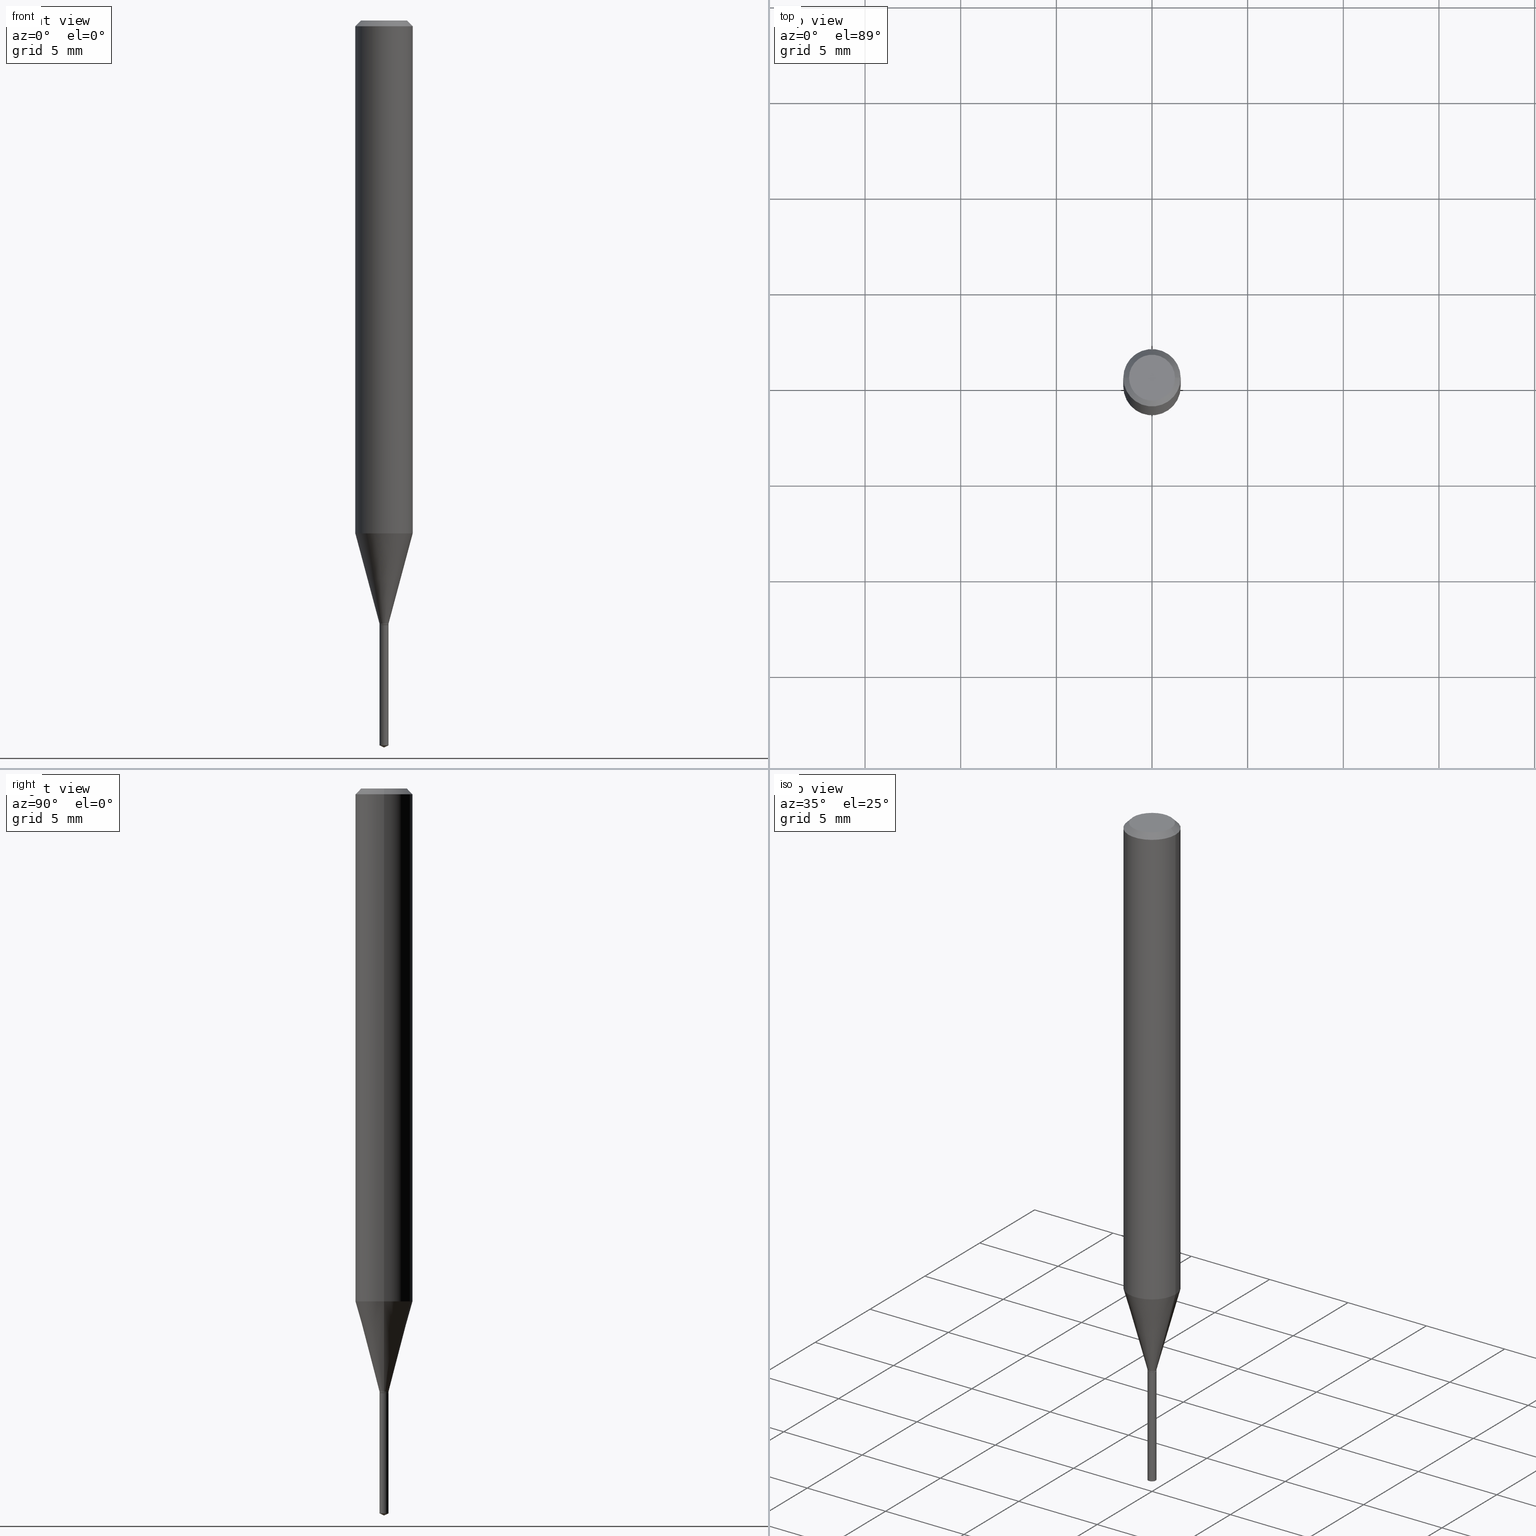
[diagram: canonical four-view strip — front | top / right | iso, engineering-drawing reading convention]
A machine part, canonical four-view strip (front | top / right | iso — engineering-drawing reading convention). The complete STEP part file that produces these views, byte-faithful:
ISO-10303-21;
HEADER;
FILE_DESCRIPTION (( 'STEP AP203' ),
    '1' );
FILE_NAME ('07422.STEP',
    '2024-04-23T21:16:36',
    ( '' ),
    ( '' ),
    'SwSTEP 2.0',
    'SolidWorks 2023',
    '' );
FILE_SCHEMA (( 'CONFIG_CONTROL_DESIGN' ));
ENDSEC;

DATA;
#1 =( LENGTH_UNIT ( ) NAMED_UNIT ( * ) SI_UNIT ( $, .METRE. ) );
#2 = LINE ( 'NONE', #193, #13 ) ;
#3 = EDGE_LOOP ( 'NONE', ( #420, #167, #348, #89 ) ) ;
#4 = CONICAL_SURFACE ( 'NONE', #62, 0.05904999999999999832, 0.7853981633974452814 ) ;
#5 = APPROVAL_ROLE ( '' ) ;
#6 = VECTOR ( 'NONE', #463, 39.37007874015748143 ) ;
#7 = DIRECTION ( 'NONE',  ( -2.438088387897960049E-29, 3.491481338843145188E-15, 1.000000000000000000 ) ) ;
#8 = DATE_TIME_ROLE ( 'creation_date' ) ;
#9 = EDGE_CURVE ( 'NONE', #271, #310, #80, .T. ) ;
#10 = ORIENTED_EDGE ( 'NONE', *, *, #248, .F. ) ;
#11 = EDGE_LOOP ( 'NONE', ( #199, #414, #390, #19 ) ) ;
#12 = DIRECTION ( 'NONE',  ( -2.445468806185136597E-29, 3.491481338843145583E-15, 1.000000000000000000 ) ) ;
#13 = VECTOR ( 'NONE', #376, 39.37007874015748854 ) ;
#14 = DIRECTION ( 'NONE',  ( 1.000000000000000000, -6.982962677686266711E-15, 4.876176775795935232E-29 ) ) ;
#15 = LOCAL_TIME ( 17, 16, 36.00000000000000000, #49 ) ;
#16 = ORIENTED_EDGE ( 'NONE', *, *, #22, .F. ) ;
#17 = EDGE_CURVE ( 'NONE', #428, #419, #194, .T. ) ;
#18 = CARTESIAN_POINT ( 'NONE',  ( 3.670345667395058439E-29, -5.207239042452925869E-15, -1.496099999999999985 ) ) ;
#19 = ORIENTED_EDGE ( 'NONE', *, *, #17, .F. ) ;
#20 = DIRECTION ( 'NONE',  ( 0.7071067811866191821, -2.468850131083007662E-15, 0.7071067811864758523 ) ) ;
#21 = CARTESIAN_POINT ( 'NONE',  ( -0.008749999999999999098, -4.278930217101637721E-15, -1.244099999999999984 ) ) ;
#22 = EDGE_CURVE ( 'NONE', #474, #177, #252, .T. ) ;
#23 = CIRCLE ( 'NONE', #400, 0.008749999999999999098 ) ;
#24 = CONICAL_SURFACE ( 'NONE', #38, 84.42940631927262984, 1.134464013796308235 ) ;
#25 = CARTESIAN_POINT ( 'NONE',  ( 2.888098660104664204E-31, -4.123439461173780263E-17, -0.01181000000000007218 ) ) ;
#26 = ORIENTED_EDGE ( 'NONE', *, *, #394, .F. ) ;
#27 = CARTESIAN_POINT ( 'NONE',  ( 0.009249999999999999542, -6.459240476859796165E-17, 4.510463517611240048E-31 ) ) ;
#28 = ORIENTED_EDGE ( 'NONE', *, *, #108, .T. ) ;
#29 = CARTESIAN_POINT ( 'NONE',  ( -6.459240476856152614E-17, -0.009250000000005217590, -1.491786654162066128 ) ) ;
#30 = AXIS2_PLACEMENT_3D ( 'NONE', #25, #476, #138 ) ;
#31 = APPROVAL_PERSON_ORGANIZATION ( #90, #351, #395 ) ;
#32 = APPROVAL ( #43, 'UNSPECIFIED' ) ;
#33 = DIRECTION ( 'NONE',  ( -6.982962677686268288E-15, -1.000000000000000000, 3.520397390770525262E-15 ) ) ;
#34 = LINE ( 'NONE', #27, #466 ) ;
#35 = CARTESIAN_POINT ( 'NONE',  ( 0.009249999999999999542, -4.406598597753934435E-15, -1.243600000000000039 ) ) ;
#36 = EDGE_CURVE ( 'NONE', #460, #474, #2, .T. ) ;
#37 = AXIS2_PLACEMENT_3D ( 'NONE', #44, #7, #156 ) ;
#38 = AXIS2_PLACEMENT_3D ( 'NONE', #66, #368, #33 ) ;
#39 = DIRECTION ( 'NONE',  ( -6.982962677686266711E-15, -1.000000000000000000, 0.000000000000000000 ) ) ;
#40 = MANIFOLD_SOLID_BREP ( 'Body-Move/Copy2[2]', #163 ) ;
#41 = DIRECTION ( 'NONE',  ( 1.000000000000000000, -6.982962677686254089E-15, 0.000000000000000000 ) ) ;
#42 = EDGE_LOOP ( 'NONE', ( #324, #480, #275, #355 ) ) ;
#43 = APPROVAL_STATUS ( 'not_yet_approved' ) ;
#44 = CARTESIAN_POINT ( 'NONE',  ( 3.042407741774928155E-29, -4.343751933654757151E-15, -1.244099999999999984 ) ) ;
#45 = EDGE_CURVE ( 'NONE', #471, #214, #424, .T. ) ;
#46 = CONICAL_SURFACE ( 'NONE', #405, 0.009249999999999999542, 0.2617993877991499074 ) ;
#47 = DIRECTION ( 'NONE',  ( 1.000000000000000000, -6.982962677686306154E-15, 0.000000000000000000 ) ) ;
#48 = VERTEX_POINT ( 'NONE', #79 ) ;
#49 = COORDINATED_UNIVERSAL_TIME_OFFSET ( 5, 0, .BEHIND. ) ;
#50 = DIRECTION ( 'NONE',  ( 1.000000000000000000, -6.982962677686264344E-15, 0.000000000000000000 ) ) ;
#51 = PERSON_AND_ORGANIZATION_ROLE ( 'classification_officer' ) ;
#52 = DIRECTION ( 'NONE',  ( 2.445468806185136597E-29, -3.491481338843145583E-15, -1.000000000000000000 ) ) ;
#53 = COORDINATED_UNIVERSAL_TIME_OFFSET ( 5, 0, .BEHIND. ) ;
#54 = AXIS2_PLACEMENT_3D ( 'NONE', #396, #140, #134 ) ;
#55 = CARTESIAN_POINT ( 'NONE',  ( 3.035560429117610036E-29, -4.333975785905995943E-15, -1.241299999999999848 ) ) ;
#56 = CC_DESIGN_APPROVAL ( #198, ( #144 ) ) ;
#57 = DIRECTION ( 'NONE',  ( 6.439704144417005898E-15, 0.9063077870366489375, 0.4226182617407017172 ) ) ;
#58 = ADVANCED_BREP_SHAPE_REPRESENTATION ( '07422', ( #200, #40, #114 ), #154 ) ;
#59 = DIRECTION ( 'NONE',  ( -2.445468806185136597E-29, 3.491481338843145583E-15, 1.000000000000000000 ) ) ;
#60 = DIRECTION ( 'NONE',  ( 1.000000000000000000, -6.982962677686250144E-15, 0.000000000000000000 ) ) ;
#61 = EDGE_LOOP ( 'NONE', ( #268, #417, #462, #233 ) ) ;
#62 = AXIS2_PLACEMENT_3D ( 'NONE', #236, #52, #116 ) ;
#63 = DIRECTION ( 'NONE',  ( 1.000000000000000000, -6.982962677686264344E-15, 0.000000000000000000 ) ) ;
#64 = CARTESIAN_POINT ( 'NONE',  ( 3.641431628674223535E-29, -5.248285661191353441E-15, -1.496099999999999985 ) ) ;
#65 = ADVANCED_FACE ( 'NONE', ( #342 ), #4, .T. ) ;
#66 = CARTESIAN_POINT ( 'NONE',  ( -9.216901474160064469E-28, 1.328816018163103804E-13, 37.87397874015748300 ) ) ;
#67 = CIRCLE ( 'NONE', #335, 0.05905000000000013710 ) ;
#68 = DIRECTION ( 'NONE',  ( -6.982962677686265133E-15, -1.000000000000000000, 0.000000000000000000 ) ) ;
#69 = CC_DESIGN_PERSON_AND_ORGANIZATION_ASSIGNMENT ( #117, #266, ( #315 ) ) ;
#70 = LINE ( 'NONE', #481, #259 ) ;
#71 = CARTESIAN_POINT ( 'NONE',  ( -6.459240476856754120E-17, -0.009250000000004345024, -1.244099999999999984 ) ) ;
#72 = VECTOR ( 'NONE', #168, 39.37007874015748143 ) ;
#73 = CARTESIAN_POINT ( 'NONE',  ( -0.05905000000000006771, 4.195754854663396409E-16, -2.904631170795525045E-30 ) ) ;
#74 = CARTESIAN_POINT ( 'NONE',  ( 3.042407741774928155E-29, -4.343751933654757151E-15, -1.244099999999999984 ) ) ;
#75 = CARTESIAN_POINT ( 'NONE',  ( 3.035560429117610036E-29, -4.333975785905995943E-15, -1.241299999999999848 ) ) ;
#76 = FACE_OUTER_BOUND ( 'NONE', #42, .T. ) ;
#77 = ADVANCED_FACE ( 'NONE', ( #354 ), #192, .T. ) ;
#78 = COORDINATED_UNIVERSAL_TIME_OFFSET ( 5, 0, .BEHIND. ) ;
#79 = CARTESIAN_POINT ( 'NONE',  ( 6.572520305784578573E-17, 0.009249999999995655794, -1.244099999999999984 ) ) ;
#80 = CIRCLE ( 'NONE', #339, 0.008749999999999999098 ) ;
#81 = ORIENTED_EDGE ( 'NONE', *, *, #207, .T. ) ;
#82 = VECTOR ( 'NONE', #150, 39.37007874015748854 ) ;
#83 = APPLICATION_CONTEXT ( 'configuration controlled 3d designs of mechanical parts and assemblies' ) ;
#84 = ORIENTED_EDGE ( 'NONE', *, *, #36, .T. ) ;
#85 = APPLICATION_PROTOCOL_DEFINITION ( 'international standard', 'config_control_design', 1994, #247 ) ;
#86 = PRODUCT_RELATED_PRODUCT_CATEGORY ( 'detail', '', ( #412 ) ) ;
#87 = ORIENTED_EDGE ( 'NONE', *, *, #207, .F. ) ;
#88 = DIRECTION ( 'NONE',  ( 1.000000000000000000, -6.982962677686250144E-15, 0.000000000000000000 ) ) ;
#89 = ORIENTED_EDGE ( 'NONE', *, *, #108, .F. ) ;
#90 = PERSON_AND_ORGANIZATION ( #345, #392 ) ;
#91 = AXIS2_PLACEMENT_3D ( 'NONE', #243, #129, #173 ) ;
#92 = CARTESIAN_POINT ( 'NONE',  ( 0.000000000000000000, 0.000000000000000000, 0.000000000000000000 ) ) ;
#93 = CC_DESIGN_SECURITY_CLASSIFICATION ( #329, ( #144 ) ) ;
#94 = APPROVAL_DATE_TIME ( #98, #198 ) ;
#95 = CARTESIAN_POINT ( 'NONE',  ( 8.265746106709734507E-48, -1.180129479067563789E-33, -3.380025165646692144E-19 ) ) ;
#96 = ORIENTED_EDGE ( 'NONE', *, *, #22, .T. ) ;
#97 = ADVANCED_FACE ( 'NONE', ( #76 ), #300, .T. ) ;
#98 = DATE_AND_TIME ( #235, #218 ) ;
#99 = DIRECTION ( 'NONE',  ( -2.445468806185136597E-29, 3.491481338843145583E-15, 1.000000000000000000 ) ) ;
#100 = CARTESIAN_POINT ( 'NONE',  ( 4.132873053354867254E-48, -5.900647395337818946E-34, -1.690012582823346072E-19 ) ) ;
#101 = ORIENTED_EDGE ( 'NONE', *, *, #478, .T. ) ;
#102 = AXIS2_PLACEMENT_3D ( 'NONE', #331, #222, #488 ) ;
#103 = FACE_OUTER_BOUND ( 'NONE', #201, .T. ) ;
#104 = ADVANCED_FACE ( 'NONE', ( #152 ), #379, .F. ) ;
#105 = DESIGN_CONTEXT ( 'detailed design', #83, 'design' ) ;
#106 = DIRECTION ( 'NONE',  ( -2.445468806185136877E-29, 3.491481338843145188E-15, 1.000000000000000000 ) ) ;
#107 = CARTESIAN_POINT ( 'NONE',  ( -9.216901474160064469E-28, 1.328816018163103804E-13, 37.87397874015748300 ) ) ;
#108 = EDGE_CURVE ( 'NONE', #471, #381, #458, .T. ) ;
#109 = CIRCLE ( 'NONE', #456, 0.009249999999999999542 ) ;
#110 = DIRECTION ( 'NONE',  ( -2.433949354103485076E-29, 3.507977849870565923E-15, 1.000000000000000000 ) ) ;
#111 = CYLINDRICAL_SURFACE ( 'NONE', #425, 0.05905000000000006771 ) ;
#112 =( NAMED_UNIT ( * ) PLANE_ANGLE_UNIT ( ) SI_UNIT ( $, .RADIAN. ) );
#113 = CARTESIAN_POINT ( 'NONE',  ( 3.042407741774928155E-29, -4.343751933654757151E-15, -1.244099999999999984 ) ) ;
#114 = AXIS2_PLACEMENT_3D ( 'NONE', #422, #224, #301 ) ;
#115 = EDGE_CURVE ( 'NONE', #383, #399, #479, .T. ) ;
#116 = DIRECTION ( 'NONE',  ( -1.000000000000000000, 6.982962677686266711E-15, 0.000000000000000000 ) ) ;
#117 = PERSON_AND_ORGANIZATION ( #345, #392 ) ;
#118 = CARTESIAN_POINT ( 'NONE',  ( -0.05904999999999999832, 3.711095515056362547E-16, -0.01181000000000007218 ) ) ;
#119 = ORIENTED_EDGE ( 'NONE', *, *, #489, .T. ) ;
#120 = DIMENSIONAL_EXPONENTS ( 1.000000000000000000, 0.000000000000000000, 0.000000000000000000, 0.000000000000000000, 0.000000000000000000, 0.000000000000000000, 0.000000000000000000 ) ;
#121 = APPROVAL_STATUS ( 'not_yet_approved' ) ;
#122 = ORIENTED_EDGE ( 'NONE', *, *, #124, .T. ) ;
#123 = ORIENTED_EDGE ( 'NONE', *, *, #135, .F. ) ;
#124 = EDGE_CURVE ( 'NONE', #419, #428, #281, .T. ) ;
#125 = LINE ( 'NONE', #306, #82 ) ;
#126 = AXIS2_PLACEMENT_3D ( 'NONE', #258, #110, #68 ) ;
#127 = ORIENTED_EDGE ( 'NONE', *, *, #151, .F. ) ;
#128 = ORIENTED_EDGE ( 'NONE', *, *, #421, .T. ) ;
#129 = DIRECTION ( 'NONE',  ( -2.445468806185136597E-29, 3.491481338843145583E-15, 1.000000000000000000 ) ) ;
#130 = ORIENTED_EDGE ( 'NONE', *, *, #115, .T. ) ;
#131 = CARTESIAN_POINT ( 'NONE',  ( -0.05905000000000013710, -3.265487090077642716E-15, -1.055443869783069699 ) ) ;
#132 = CALENDAR_DATE ( 2024, 23, 4 ) ;
#133 = CIRCLE ( 'NONE', #372, 0.04724000000000000421 ) ;
#134 = DIRECTION ( 'NONE',  ( -6.982962677686266711E-15, -1.000000000000000000, 0.000000000000000000 ) ) ;
#135 = EDGE_CURVE ( 'NONE', #177, #474, #67, .T. ) ;
#136 = ORIENTED_EDGE ( 'NONE', *, *, #385, .T. ) ;
#137 = SECURITY_CLASSIFICATION_LEVEL ( 'unclassified' ) ;
#138 = DIRECTION ( 'NONE',  ( -1.000000000000000000, 6.982962677686266711E-15, 0.000000000000000000 ) ) ;
#139 = VERTEX_POINT ( 'NONE', #205 ) ;
#140 = DIRECTION ( 'NONE',  ( -2.433949354103485076E-29, 3.507977849870565923E-15, 1.000000000000000000 ) ) ;
#141 = ORIENTED_EDGE ( 'NONE', *, *, #248, .T. ) ;
#142 = DIRECTION ( 'NONE',  ( 0.7071067811865453523, -7.319954787623248157E-15, -0.7071067811865496822 ) ) ;
#143 = VECTOR ( 'NONE', #277, 39.37007874015748143 ) ;
#144 = PRODUCT_DEFINITION_FORMATION_WITH_SPECIFIED_SOURCE ( 'ANY', '', #412, .NOT_KNOWN. ) ;
#145 = PLANE ( 'NONE',  #411 ) ;
#146 = CARTESIAN_POINT ( 'NONE',  ( 3.645264513692742757E-29, -5.212631230163837176E-15, -1.491786654162066128 ) ) ;
#147 = FACE_OUTER_BOUND ( 'NONE', #195, .T. ) ;
#148 = CIRCLE ( 'NONE', #465, 0.05904999999999999832 ) ;
#149 = DIRECTION ( 'NONE',  ( 1.000000000000000000, -6.982962677686266711E-15, 0.000000000000000000 ) ) ;
#150 = DIRECTION ( 'NONE',  ( -0.2588190451025211836, 5.211531920934547886E-15, 0.9659258262890679791 ) ) ;
#151 = EDGE_CURVE ( 'NONE', #383, #264, #468, .T. ) ;
#152 = FACE_OUTER_BOUND ( 'NONE', #175, .T. ) ;
#153 = VECTOR ( 'NONE', #106, 39.37007874015748143 ) ;
#154 =( GEOMETRIC_REPRESENTATION_CONTEXT ( 3 ) GLOBAL_UNCERTAINTY_ASSIGNED_CONTEXT ( ( #299 ) ) GLOBAL_UNIT_ASSIGNED_CONTEXT ( ( #452, #112, #189 ) ) REPRESENTATION_CONTEXT ( 'NONE', 'WORKASPACE' ) );
#155 = DIRECTION ( 'NONE',  ( -6.982962677686265133E-15, -1.000000000000000000, 0.000000000000000000 ) ) ;
#156 = DIRECTION ( 'NONE',  ( 1.000000000000000000, -6.982962677686265922E-15, 4.876176775795935793E-29 ) ) ;
#157 = ORIENTED_EDGE ( 'NONE', *, *, #9, .F. ) ;
#158 = PERSON_AND_ORGANIZATION ( #345, #392 ) ;
#159 = DIRECTION ( 'NONE',  ( 1.000000000000000000, -6.982962677686250144E-15, 0.000000000000000000 ) ) ;
#160 = EDGE_CURVE ( 'NONE', #399, #344, #358, .T. ) ;
#161 = ORIENTED_EDGE ( 'NONE', *, *, #407, .F. ) ;
#162 = APPLICATION_PROTOCOL_DEFINITION ( 'international standard', 'config_control_design', 1994, #83 ) ;
#163 = CLOSED_SHELL ( 'NONE', ( #366, #276, #186, #333, #77, #439, #269, #307, #65, #292, #104, #212 ) ) ;
#164 = CIRCLE ( 'NONE', #343, 0.009249999999999999542 ) ;
#165 = AXIS2_PLACEMENT_3D ( 'NONE', #146, #450, #155 ) ;
#166 = DIRECTION ( 'NONE',  ( 2.438088387897960049E-29, -3.491481338843145188E-15, -1.000000000000000000 ) ) ;
#167 = ORIENTED_EDGE ( 'NONE', *, *, #413, .T. ) ;
#168 = DIRECTION ( 'NONE',  ( -2.433949354103485076E-29, 3.507977849870566318E-15, 1.000000000000000000 ) ) ;
#169 = ORIENTED_EDGE ( 'NONE', *, *, #459, .T. ) ;
#170 = EDGE_CURVE ( 'NONE', #214, #471, #133, .T. ) ;
#171 = DIRECTION ( 'NONE',  ( -6.982962677686266711E-15, -1.000000000000000000, 0.000000000000000000 ) ) ;
#172 = AXIS2_PLACEMENT_3D ( 'NONE', #270, #423, #50 ) ;
#173 = DIRECTION ( 'NONE',  ( 1.000000000000000000, -6.982962677686306154E-15, 0.000000000000000000 ) ) ;
#174 = VECTOR ( 'NONE', #415, 39.37007874015748143 ) ;
#175 = EDGE_LOOP ( 'NONE', ( #87, #157 ) ) ;
#176 = CYLINDRICAL_SURFACE ( 'NONE', #232, 0.05905000000000006771 ) ;
#177 = VERTEX_POINT ( 'NONE', #131 ) ;
#178 = CC_DESIGN_PERSON_AND_ORGANIZATION_ASSIGNMENT ( #242, #244, ( #144 ) ) ;
#179 = CARTESIAN_POINT ( 'NONE',  ( 2.888098660104664204E-31, -4.123439461173780263E-17, -0.01181000000000007218 ) ) ;
#180 = ORIENTED_EDGE ( 'NONE', *, *, #17, .T. ) ;
#181 = DIRECTION ( 'NONE',  ( -2.445468806185136597E-29, 3.491481338843145583E-15, 1.000000000000000000 ) ) ;
#182 = CIRCLE ( 'NONE', #487, 0.009249999999999999542 ) ;
#183 = FACE_OUTER_BOUND ( 'NONE', #290, .T. ) ;
#184 = PRODUCT_DEFINITION_SHAPE ( 'NONE', 'NONE',  #315 ) ;
#185 = DIRECTION ( 'NONE',  ( 1.000000000000000000, -6.982962677686266711E-15, 4.876176775795935232E-29 ) ) ;
#186 = ADVANCED_FACE ( 'NONE', ( #429 ), #176, .T. ) ;
#187 = DIRECTION ( 'NONE',  ( 6.982962677686265922E-15, 1.000000000000000000, -3.507977849870566318E-15 ) ) ;
#188 = APPROVAL_PERSON_ORGANIZATION ( #227, #32, #5 ) ;
#189 =( NAMED_UNIT ( * ) SI_UNIT ( $, .STERADIAN. ) SOLID_ANGLE_UNIT ( ) );
#190 = CC_DESIGN_PERSON_AND_ORGANIZATION_ASSIGNMENT ( #384, #418, ( #412 ) ) ;
#191 = DIRECTION ( 'NONE',  ( -2.433949354103485076E-29, 3.507977849870565923E-15, 1.000000000000000000 ) ) ;
#192 = CYLINDRICAL_SURFACE ( 'NONE', #303, 0.009249999999999999542 ) ;
#193 = CARTESIAN_POINT ( 'NONE',  ( 0.009249999999999999542, -4.398568190674593941E-15, -1.241299999999999848 ) ) ;
#194 = CIRCLE ( 'NONE', #410, 0.009249999999999999542 ) ;
#195 = EDGE_LOOP ( 'NONE', ( #427, #280, #26 ) ) ;
#196 = CONICAL_SURFACE ( 'NONE', #30, 0.05904999999999999832, 0.7853981633974452814 ) ;
#197 = CALENDAR_DATE ( 2024, 23, 4 ) ;
#198 = APPROVAL ( #121, 'UNSPECIFIED' ) ;
#199 = ORIENTED_EDGE ( 'NONE', *, *, #451, .F. ) ;
#200 = MANIFOLD_SOLID_BREP ( 'Body-Move/Copy2[1]', #472 ) ;
#201 = EDGE_LOOP ( 'NONE', ( #377, #101 ) ) ;
#202 = VECTOR ( 'NONE', #279, 39.37007874015748854 ) ;
#203 = AXIS2_PLACEMENT_3D ( 'NONE', #107, #371, #289 ) ;
#204 = DATE_AND_TIME ( #132, #434 ) ;
#205 = CARTESIAN_POINT ( 'NONE',  ( -0.009249999999999999542, -4.272265786387857456E-15, -1.241299999999999848 ) ) ;
#206 = ORIENTED_EDGE ( 'NONE', *, *, #489, .F. ) ;
#207 = EDGE_CURVE ( 'NONE', #310, #271, #23, .T. ) ;
#208 = DATE_TIME_ROLE ( 'classification_date' ) ;
#209 = LINE ( 'NONE', #359, #356 ) ;
#210 = DIRECTION ( 'NONE',  ( 1.000000000000000000, -6.982962677686254089E-15, 0.000000000000000000 ) ) ;
#211 = CARTESIAN_POINT ( 'NONE',  ( 0.04724000000000000421, -3.852183633974369345E-16, -3.380025165621689721E-19 ) ) ;
#212 = ADVANCED_FACE ( 'NONE', ( #470 ), #442, .T. ) ;
#213 = VECTOR ( 'NONE', #449, 39.37007874015748143 ) ;
#214 = VERTEX_POINT ( 'NONE', #211 ) ;
#215 = CARTESIAN_POINT ( 'NONE',  ( 0.05904999999999999832, -4.535783407291118600E-16, -0.01181000000000007218 ) ) ;
#216 = CARTESIAN_POINT ( 'NONE',  ( 0.000000000000000000, 0.000000000000000000, 0.000000000000000000 ) ) ;
#217 = DIRECTION ( 'NONE',  ( 2.433949354103484515E-29, -3.507977849870566318E-15, -1.000000000000000000 ) ) ;
#218 = LOCAL_TIME ( 17, 16, 36.00000000000000000, #53 ) ;
#219 = EDGE_CURVE ( 'NONE', #344, #48, #164, .T. ) ;
#220 = DIRECTION ( 'NONE',  ( 1.000000000000000000, -6.982962677686266711E-15, 0.000000000000000000 ) ) ;
#221 = CARTESIAN_POINT ( 'NONE',  ( 0.000000000000000000, 0.000000000000000000, 0.000000000000000000 ) ) ;
#222 = DIRECTION ( 'NONE',  ( -2.445468806185136597E-29, 3.491481338843145583E-15, 1.000000000000000000 ) ) ;
#223 = AXIS2_PLACEMENT_3D ( 'NONE', #253, #393, #60 ) ;
#224 = DIRECTION ( 'NONE',  ( 0.000000000000000000, 0.000000000000000000, 1.000000000000000000 ) ) ;
#225 = DIRECTION ( 'NONE',  ( -2.433949354103485076E-29, 3.507977849870565923E-15, 1.000000000000000000 ) ) ;
#226 = EDGE_LOOP ( 'NONE', ( #122, #141, #251, #467 ) ) ;
#227 = PERSON_AND_ORGANIZATION ( #345, #392 ) ;
#228 = DIRECTION ( 'NONE',  ( -6.982962677686266711E-15, -1.000000000000000000, 0.000000000000000000 ) ) ;
#229 = CARTESIAN_POINT ( 'NONE',  ( 0.05905000000000013710, -4.097406521661357129E-15, -1.055443869783069699 ) ) ;
#230 = ORIENTED_EDGE ( 'NONE', *, *, #485, .T. ) ;
#231 = EDGE_LOOP ( 'NONE', ( #96, #230, #161, #283 ) ) ;
#232 = AXIS2_PLACEMENT_3D ( 'NONE', #92, #99, #322 ) ;
#233 = ORIENTED_EDGE ( 'NONE', *, *, #160, .F. ) ;
#234 = ORIENTED_EDGE ( 'NONE', *, *, #170, .T. ) ;
#235 = CALENDAR_DATE ( 2024, 23, 4 ) ;
#236 = CARTESIAN_POINT ( 'NONE',  ( 2.888098660104664204E-31, -4.123439461173780263E-17, -0.01181000000000007218 ) ) ;
#237 = SHAPE_DEFINITION_REPRESENTATION ( #184, #58 ) ;
#238 = DIRECTION ( 'NONE',  ( 1.000000000000000000, -6.982962677686266711E-15, 4.876185090822587894E-29 ) ) ;
#239 = CC_DESIGN_PERSON_AND_ORGANIZATION_ASSIGNMENT ( #387, #51, ( #329 ) ) ;
#240 = AXIS2_PLACEMENT_3D ( 'NONE', #100, #166, #317 ) ;
#241 = LOCAL_TIME ( 17, 16, 36.00000000000000000, #440 ) ;
#242 = PERSON_AND_ORGANIZATION ( #345, #392 ) ;
#243 = CARTESIAN_POINT ( 'NONE',  ( 3.041185007371835914E-29, -4.342006192985336437E-15, -1.243600000000000039 ) ) ;
#244 = PERSON_AND_ORGANIZATION_ROLE ( 'design_supplier' ) ;
#245 = DIRECTION ( 'NONE',  ( -2.445468806185136877E-29, 3.491481338843145188E-15, 1.000000000000000000 ) ) ;
#246 = EDGE_LOOP ( 'NONE', ( #81, #437, #426, #469 ) ) ;
#247 = APPLICATION_CONTEXT ( 'configuration controlled 3d designs of mechanical parts and assemblies' ) ;
#248 = EDGE_CURVE ( 'NONE', #428, #139, #389, .T. ) ;
#249 = COORDINATED_UNIVERSAL_TIME_OFFSET ( 5, 0, .BEHIND. ) ;
#250 = CARTESIAN_POINT ( 'NONE',  ( 2.581055060233824275E-29, -3.685062575543982998E-15, -1.055443869783069699 ) ) ;
#251 = ORIENTED_EDGE ( 'NONE', *, *, #402, .F. ) ;
#252 = CIRCLE ( 'NONE', #172, 0.05905000000000013710 ) ;
#253 = CARTESIAN_POINT ( 'NONE',  ( 3.042407741774928155E-29, -4.343751933654757151E-15, -1.244099999999999984 ) ) ;
#254 = AXIS2_PLACEMENT_3D ( 'NONE', #490, #191, #39 ) ;
#255 = CARTESIAN_POINT ( 'NONE',  ( 3.035560429117610036E-29, -4.333975785905995943E-15, -1.241299999999999848 ) ) ;
#256 = CARTESIAN_POINT ( 'NONE',  ( -0.05904999999999999832, -1.443572999611519884E-15, -0.01181000000000007218 ) ) ;
#257 = EDGE_CURVE ( 'NONE', #310, #419, #209, .T. ) ;
#258 = CARTESIAN_POINT ( 'NONE',  ( 3.645264513692742757E-29, -5.212631230163837176E-15, -1.491786654162066128 ) ) ;
#259 = VECTOR ( 'NONE', #142, 39.37007874015748143 ) ;
#260 = CYLINDRICAL_SURFACE ( 'NONE', #321, 0.009249999999999999542 ) ;
#261 = ADVANCED_FACE ( 'NONE', ( #320 ), #362, .T. ) ;
#262 = LINE ( 'NONE', #293, #153 ) ;
#263 = CARTESIAN_POINT ( 'NONE',  ( 0.000000000000000000, 0.000000000000000000, 0.000000000000000000 ) ) ;
#264 = VERTEX_POINT ( 'NONE', #325 ) ;
#265 = VERTEX_POINT ( 'NONE', #215 ) ;
#266 = PERSON_AND_ORGANIZATION_ROLE ( 'creator' ) ;
#267 = ORIENTED_EDGE ( 'NONE', *, *, #402, .T. ) ;
#268 = ORIENTED_EDGE ( 'NONE', *, *, #394, .T. ) ;
#269 = ADVANCED_FACE ( 'NONE', ( #282 ), #391, .T. ) ;
#270 = CARTESIAN_POINT ( 'NONE',  ( 2.581055060233824275E-29, -3.685062575543982998E-15, -1.055443869783069699 ) ) ;
#271 = VERTEX_POINT ( 'NONE', #21 ) ;
#272 = CIRCLE ( 'NONE', #254, 0.009249999999999999542 ) ;
#273 = DIRECTION ( 'NONE',  ( -2.445468806185136597E-29, 3.491481338843145583E-15, 1.000000000000000000 ) ) ;
#274 = EDGE_LOOP ( 'NONE', ( #267, #119, #16, #295 ) ) ;
#275 = ORIENTED_EDGE ( 'NONE', *, *, #160, .T. ) ;
#276 = ADVANCED_FACE ( 'NONE', ( #365 ), #196, .T. ) ;
#277 = DIRECTION ( 'NONE',  ( -0.7071067811865453523, 2.468850131082234184E-15, -0.7071067811865496822 ) ) ;
#278 = EDGE_LOOP ( 'NONE', ( #477, #352, #28, #128 ) ) ;
#279 = DIRECTION ( 'NONE',  ( -6.328713451373349657E-15, -0.9063077870366458288, 0.4226182617407079345 ) ) ;
#280 = ORIENTED_EDGE ( 'NONE', *, *, #151, .T. ) ;
#281 = CIRCLE ( 'NONE', #91, 0.009249999999999999542 ) ;
#282 = FACE_OUTER_BOUND ( 'NONE', #305, .T. ) ;
#283 = ORIENTED_EDGE ( 'NONE', *, *, #323, .F. ) ;
#284 = CC_DESIGN_DATE_AND_TIME_ASSIGNMENT ( #309, #8, ( #315 ) ) ;
#285 = FACE_OUTER_BOUND ( 'NONE', #312, .T. ) ;
#286 = DIRECTION ( 'NONE',  ( -2.445468806185136597E-29, 3.491481338843145583E-15, 1.000000000000000000 ) ) ;
#287 = VECTOR ( 'NONE', #245, 39.37007874015748143 ) ;
#288 = CC_DESIGN_APPROVAL ( #32, ( #315 ) ) ;
#289 = DIRECTION ( 'NONE',  ( -6.982962677686268288E-15, -1.000000000000000000, 3.520397390770525262E-15 ) ) ;
#290 = EDGE_LOOP ( 'NONE', ( #10, #180, #136, #326 ) ) ;
#291 = CARTESIAN_POINT ( 'NONE',  ( -0.009249999999999999542, -4.272265786387857456E-15, -1.243600000000000039 ) ) ;
#292 = ADVANCED_FACE ( 'NONE', ( #285 ), #441, .F. ) ;
#293 = CARTESIAN_POINT ( 'NONE',  ( 0.05905000000000006771, -4.123439461173745257E-16, 2.879382386107503723E-30 ) ) ;
#294 = DIRECTION ( 'NONE',  ( -2.445468806185136597E-29, 3.491481338843145583E-15, 1.000000000000000000 ) ) ;
#295 = ORIENTED_EDGE ( 'NONE', *, *, #36, .F. ) ;
#296 = CONICAL_SURFACE ( 'NONE', #102, 0.008749999999999999098, 0.7853981633975496424 ) ;
#297 = CC_DESIGN_DATE_AND_TIME_ASSIGNMENT ( #430, #208, ( #329 ) ) ;
#298 = DIRECTION ( 'NONE',  ( -2.445468806185136597E-29, 3.491481338843145583E-15, 1.000000000000000000 ) ) ;
#299 = UNCERTAINTY_MEASURE_WITH_UNIT (LENGTH_MEASURE( 1.000000000000000082E-05 ), #452, 'distance_accuracy_value', 'NONE');
#300 = CYLINDRICAL_SURFACE ( 'NONE', #447, 0.009250000000000001277 ) ;
#301 = DIRECTION ( 'NONE',  ( 1.000000000000000000, 0.000000000000000000, 0.000000000000000000 ) ) ;
#302 = CARTESIAN_POINT ( 'NONE',  ( 3.041185007371835914E-29, -4.342006192985336437E-15, -1.243600000000000039 ) ) ;
#303 = AXIS2_PLACEMENT_3D ( 'NONE', #263, #350, #14 ) ;
#304 = CC_DESIGN_APPROVAL ( #351, ( #329 ) ) ;
#305 = EDGE_LOOP ( 'NONE', ( #206, #169, #84, #123 ) ) ;
#306 = CARTESIAN_POINT ( 'NONE',  ( -0.009249999999999999542, -4.268250582848186814E-15, -1.241299999999999848 ) ) ;
#307 = ADVANCED_FACE ( 'NONE', ( #486 ), #111, .T. ) ;
#308 = DIRECTION ( 'NONE',  ( 1.000000000000000000, -6.982962677686266711E-15, 4.876185090822587894E-29 ) ) ;
#309 = DATE_AND_TIME ( #346, #357 ) ;
#310 = VERTEX_POINT ( 'NONE', #406 ) ;
#311 = DATE_AND_TIME ( #197, #15 ) ;
#312 = EDGE_LOOP ( 'NONE', ( #313, #234 ) ) ;
#313 = ORIENTED_EDGE ( 'NONE', *, *, #45, .T. ) ;
#314 = VECTOR ( 'NONE', #57, 39.37007874015748854 ) ;
#315 = PRODUCT_DEFINITION ( 'UNKNOWN', '', #144, #105 ) ;
#316 = PERSON_AND_ORGANIZATION_ROLE ( 'creator' ) ;
#317 = DIRECTION ( 'NONE',  ( -1.000000000000000000, 6.982962677686265922E-15, -4.876176775795935793E-29 ) ) ;
#318 = CARTESIAN_POINT ( 'NONE',  ( 3.641431628674223535E-29, -5.248285661191353441E-15, -1.496099999999999985 ) ) ;
#319 = CALENDAR_DATE ( 2024, 23, 4 ) ;
#320 = FACE_OUTER_BOUND ( 'NONE', #61, .T. ) ;
#321 = AXIS2_PLACEMENT_3D ( 'NONE', #221, #484, #185 ) ;
#322 = DIRECTION ( 'NONE',  ( 1.000000000000000000, -6.982962677686266711E-15, 4.876176775795936353E-29 ) ) ;
#323 = EDGE_CURVE ( 'NONE', #474, #265, #262, .T. ) ;
#324 = ORIENTED_EDGE ( 'NONE', *, *, #369, .F. ) ;
#325 = CARTESIAN_POINT ( 'NONE',  ( 6.572520305784574876E-17, 0.009249999999994791902, -1.491786654162066128 ) ) ;
#326 = ORIENTED_EDGE ( 'NONE', *, *, #459, .F. ) ;
#327 = DIRECTION ( 'NONE',  ( 1.000000000000000000, -6.982962677686266711E-15, 4.876176775795936353E-29 ) ) ;
#328 = CC_DESIGN_PERSON_AND_ORGANIZATION_ASSIGNMENT ( #360, #316, ( #144 ) ) ;
#329 = SECURITY_CLASSIFICATION ( '', '', #137 ) ;
#330 = DIRECTION ( 'NONE',  ( 1.000000000000000000, -6.982962677686254089E-15, 0.000000000000000000 ) ) ;
#331 = CARTESIAN_POINT ( 'NONE',  ( 3.042407741774928155E-29, -4.343751933654757151E-15, -1.244099999999999984 ) ) ;
#332 = CARTESIAN_POINT ( 'NONE',  ( 2.888098660104664204E-31, -4.123439461173780263E-17, -0.01181000000000007218 ) ) ;
#333 = ADVANCED_FACE ( 'NONE', ( #409 ), #46, .T. ) ;
#334 = DIRECTION ( 'NONE',  ( 1.000000000000000000, -6.982962677686254089E-15, 0.000000000000000000 ) ) ;
#335 = AXIS2_PLACEMENT_3D ( 'NONE', #250, #436, #63 ) ;
#336 = CIRCLE ( 'NONE', #475, 0.05904999999999999832 ) ;
#337 = LINE ( 'NONE', #378, #6 ) ;
#338 = LENGTH_MEASURE_WITH_UNIT ( LENGTH_MEASURE( 0.02539999999999999897 ), #1 );
#339 = AXIS2_PLACEMENT_3D ( 'NONE', #113, #12, #159 ) ;
#340 = ADVANCED_FACE ( 'NONE', ( #147 ), #448, .T. ) ;
#341 = APPROVAL_DATE_TIME ( #311, #32 ) ;
#342 = FACE_OUTER_BOUND ( 'NONE', #278, .T. ) ;
#343 = AXIS2_PLACEMENT_3D ( 'NONE', #401, #363, #171 ) ;
#344 = VERTEX_POINT ( 'NONE', #71 ) ;
#345 = PERSON ( 'UNSPECIFIED', 'UNSPECIFIED', 'UNSPECIFIED', ('UNSPECIFIED'), ('UNSPECIFIED'), ('UNSPECIFIED') ) ;
#346 = CALENDAR_DATE ( 2024, 23, 4 ) ;
#347 = ORIENTED_EDGE ( 'NONE', *, *, #485, .F. ) ;
#348 = ORIENTED_EDGE ( 'NONE', *, *, #407, .T. ) ;
#349 = CARTESIAN_POINT ( 'NONE',  ( 0.009249999999999999542, -4.398568190674593941E-15, -1.241299999999999848 ) ) ;
#350 = DIRECTION ( 'NONE',  ( -2.445468806185136597E-29, 3.491481338843145583E-15, 1.000000000000000000 ) ) ;
#351 = APPROVAL ( #435, 'UNSPECIFIED' ) ;
#352 = ORIENTED_EDGE ( 'NONE', *, *, #45, .F. ) ;
#353 = APPROVAL_ROLE ( '' ) ;
#354 = FACE_OUTER_BOUND ( 'NONE', #226, .T. ) ;
#355 = ORIENTED_EDGE ( 'NONE', *, *, #478, .F. ) ;
#356 = VECTOR ( 'NONE', #20, 39.37007874015748143 ) ;
#357 = LOCAL_TIME ( 17, 16, 36.00000000000000000, #78 ) ;
#358 = LINE ( 'NONE', #431, #72 ) ;
#359 = CARTESIAN_POINT ( 'NONE',  ( 0.008749999999999999098, -4.404852857084512143E-15, -1.244099999999999984 ) ) ;
#360 = PERSON_AND_ORGANIZATION ( #345, #392 ) ;
#361 = ADVANCED_FACE ( 'NONE', ( #103 ), #145, .F. ) ;
#362 = CYLINDRICAL_SURFACE ( 'NONE', #54, 0.009250000000000001277 ) ;
#363 = DIRECTION ( 'NONE',  ( -2.433949354103485076E-29, 3.507977849870565923E-15, 1.000000000000000000 ) ) ;
#364 = ORIENTED_EDGE ( 'NONE', *, *, #135, .T. ) ;
#365 = FACE_OUTER_BOUND ( 'NONE', #3, .T. ) ;
#366 = ADVANCED_FACE ( 'NONE', ( #408 ), #296, .T. ) ;
#367 = CARTESIAN_POINT ( 'NONE',  ( 3.042407741774928155E-29, -4.343751933654757151E-15, -1.244099999999999984 ) ) ;
#368 = DIRECTION ( 'NONE',  ( -2.433949354103485076E-29, 3.507977849870565923E-15, 1.000000000000000000 ) ) ;
#369 = EDGE_CURVE ( 'NONE', #264, #48, #370, .T. ) ;
#370 = LINE ( 'NONE', #444, #213 ) ;
#371 = DIRECTION ( 'NONE',  ( -2.433949354103485076E-29, 3.507977849870565923E-15, 1.000000000000000000 ) ) ;
#372 = AXIS2_PLACEMENT_3D ( 'NONE', #95, #438, #238 ) ;
#373 = CARTESIAN_POINT ( 'NONE',  ( -0.04724000000000000421, 3.504923541997677355E-16, -3.380025165670481712E-19 ) ) ;
#374 = CIRCLE ( 'NONE', #126, 0.009250000000000003011 ) ;
#375 = LINE ( 'NONE', #73, #174 ) ;
#376 = DIRECTION ( 'NONE',  ( 0.2588190451025211836, 1.565188264969622559E-15, 0.9659258262890679791 ) ) ;
#377 = ORIENTED_EDGE ( 'NONE', *, *, #219, .T. ) ;
#378 = CARTESIAN_POINT ( 'NONE',  ( -0.008749999999999999098, -4.281579444275748922E-15, -1.244099999999999984 ) ) ;
#379 = PLANE ( 'NONE',  #37 ) ;
#380 = ORIENTED_EDGE ( 'NONE', *, *, #421, .F. ) ;
#381 = VERTEX_POINT ( 'NONE', #256 ) ;
#382 = CIRCLE ( 'NONE', #165, 0.009250000000000003011 ) ;
#383 = VERTEX_POINT ( 'NONE', #64 ) ;
#384 = PERSON_AND_ORGANIZATION ( #345, #392 ) ;
#385 = EDGE_CURVE ( 'NONE', #419, #460, #34, .T. ) ;
#386 = DIRECTION ( 'NONE',  ( -2.445468806185136597E-29, 3.491481338843145583E-15, 1.000000000000000000 ) ) ;
#387 = PERSON_AND_ORGANIZATION ( #345, #392 ) ;
#388 = CARTESIAN_POINT ( 'NONE',  ( 8.265746106709734507E-48, -1.180129479067563789E-33, -3.380025165646692144E-19 ) ) ;
#389 = LINE ( 'NONE', #473, #287 ) ;
#390 = ORIENTED_EDGE ( 'NONE', *, *, #257, .T. ) ;
#391 = CONICAL_SURFACE ( 'NONE', #454, 0.009249999999999999542, 0.2617993877991499074 ) ;
#392 = ORGANIZATION ( 'UNSPECIFIED', 'UNSPECIFIED', '' ) ;
#393 = DIRECTION ( 'NONE',  ( -2.445468806185136597E-29, 3.491481338843145583E-15, 1.000000000000000000 ) ) ;
#394 = EDGE_CURVE ( 'NONE', #399, #264, #374, .T. ) ;
#395 = APPROVAL_ROLE ( '' ) ;
#396 = CARTESIAN_POINT ( 'NONE',  ( 3.042407741774928155E-29, -4.343751933654757151E-15, -1.244099999999999984 ) ) ;
#397 = APPROVAL_DATE_TIME ( #204, #351 ) ;
#398 = CARTESIAN_POINT ( 'NONE',  ( 3.042407741774928155E-29, -4.343751933654757151E-15, -1.244099999999999984 ) ) ;
#399 = VERTEX_POINT ( 'NONE', #29 ) ;
#400 = AXIS2_PLACEMENT_3D ( 'NONE', #398, #286, #88 ) ;
#401 = CARTESIAN_POINT ( 'NONE',  ( 3.042407741774928155E-29, -4.343751933654757151E-15, -1.244099999999999984 ) ) ;
#402 = EDGE_CURVE ( 'NONE', #460, #139, #182, .T. ) ;
#403 = DIRECTION ( 'NONE',  ( -2.445468806185136877E-29, 3.491481338843145188E-15, 1.000000000000000000 ) ) ;
#404 = FACE_OUTER_BOUND ( 'NONE', #457, .T. ) ;
#405 = AXIS2_PLACEMENT_3D ( 'NONE', #255, #445, #330 ) ;
#406 = CARTESIAN_POINT ( 'NONE',  ( 0.008749999999999999098, -4.404852857084512143E-15, -1.244099999999999984 ) ) ;
#407 = EDGE_CURVE ( 'NONE', #265, #381, #148, .T. ) ;
#408 = FACE_OUTER_BOUND ( 'NONE', #246, .T. ) ;
#409 = FACE_OUTER_BOUND ( 'NONE', #274, .T. ) ;
#410 = AXIS2_PLACEMENT_3D ( 'NONE', #302, #461, #47 ) ;
#411 = AXIS2_PLACEMENT_3D ( 'NONE', #367, #217, #187 ) ;
#412 = PRODUCT ( '07422', '07422', '', ( #455 ) ) ;
#413 = EDGE_CURVE ( 'NONE', #214, #265, #70, .T. ) ;
#414 = ORIENTED_EDGE ( 'NONE', *, *, #9, .T. ) ;
#415 = DIRECTION ( 'NONE',  ( -2.445468806185136877E-29, 3.491481338843145188E-15, 1.000000000000000000 ) ) ;
#416 = ORIENTED_EDGE ( 'NONE', *, *, #446, .F. ) ;
#417 = ORIENTED_EDGE ( 'NONE', *, *, #369, .T. ) ;
#418 = PERSON_AND_ORGANIZATION_ROLE ( 'design_owner' ) ;
#419 = VERTEX_POINT ( 'NONE', #35 ) ;
#420 = ORIENTED_EDGE ( 'NONE', *, *, #170, .F. ) ;
#421 = EDGE_CURVE ( 'NONE', #381, #265, #336, .T. ) ;
#422 = CARTESIAN_POINT ( 'NONE',  ( 0.000000000000000000, 0.000000000000000000, 0.000000000000000000 ) ) ;
#423 = DIRECTION ( 'NONE',  ( -2.445468806185136597E-29, 3.491481338843145583E-15, 1.000000000000000000 ) ) ;
#424 = CIRCLE ( 'NONE', #433, 0.04724000000000000421 ) ;
#425 = AXIS2_PLACEMENT_3D ( 'NONE', #216, #294, #327 ) ;
#426 = ORIENTED_EDGE ( 'NONE', *, *, #124, .F. ) ;
#427 = ORIENTED_EDGE ( 'NONE', *, *, #115, .F. ) ;
#428 = VERTEX_POINT ( 'NONE', #291 ) ;
#429 = FACE_OUTER_BOUND ( 'NONE', #231, .T. ) ;
#430 = DATE_AND_TIME ( #319, #241 ) ;
#431 = CARTESIAN_POINT ( 'NONE',  ( -6.459240476856755353E-17, -0.009250000000004346759, -1.244099999999999984 ) ) ;
#432 = ADVANCED_FACE ( 'NONE', ( #404 ), #24, .T. ) ;
#433 = AXIS2_PLACEMENT_3D ( 'NONE', #388, #386, #308 ) ;
#434 = LOCAL_TIME ( 17, 16, 36.00000000000000000, #249 ) ;
#435 = APPROVAL_STATUS ( 'not_yet_approved' ) ;
#436 = DIRECTION ( 'NONE',  ( -2.445468806185136597E-29, 3.491481338843145583E-15, 1.000000000000000000 ) ) ;
#437 = ORIENTED_EDGE ( 'NONE', *, *, #451, .T. ) ;
#438 = DIRECTION ( 'NONE',  ( -2.445468806185136597E-29, 3.491481338843145583E-15, 1.000000000000000000 ) ) ;
#439 = ADVANCED_FACE ( 'NONE', ( #183 ), #260, .T. ) ;
#440 = COORDINATED_UNIVERSAL_TIME_OFFSET ( 5, 0, .BEHIND. ) ;
#441 = PLANE ( 'NONE',  #240 ) ;
#442 = CONICAL_SURFACE ( 'NONE', #223, 0.008749999999999999098, 0.7853981633975496424 ) ;
#443 = CARTESIAN_POINT ( 'NONE',  ( 3.035560429117610036E-29, -4.333975785905995943E-15, -1.241299999999999848 ) ) ;
#444 = CARTESIAN_POINT ( 'NONE',  ( 6.572520305783969671E-17, 0.009249999999995657529, -1.244099999999999984 ) ) ;
#445 = DIRECTION ( 'NONE',  ( -2.445468806185136597E-29, 3.491481338843145583E-15, 1.000000000000000000 ) ) ;
#446 = EDGE_CURVE ( 'NONE', #264, #399, #382, .T. ) ;
#447 = AXIS2_PLACEMENT_3D ( 'NONE', #74, #225, #228 ) ;
#448 = CONICAL_SURFACE ( 'NONE', #203, 84.42940631927262984, 1.134464013796308235 ) ;
#449 = DIRECTION ( 'NONE',  ( -2.433949354103485076E-29, 3.507977849870566318E-15, 1.000000000000000000 ) ) ;
#450 = DIRECTION ( 'NONE',  ( -2.433949354103485076E-29, 3.507977849870565923E-15, 1.000000000000000000 ) ) ;
#451 = EDGE_CURVE ( 'NONE', #271, #428, #337, .T. ) ;
#452 =( CONVERSION_BASED_UNIT ( 'INCH', #338 ) LENGTH_UNIT ( ) NAMED_UNIT ( #120 ) );
#453 = ORIENTED_EDGE ( 'NONE', *, *, #323, .T. ) ;
#454 = AXIS2_PLACEMENT_3D ( 'NONE', #55, #59, #210 ) ;
#455 = MECHANICAL_CONTEXT ( 'NONE', #247, 'mechanical' ) ;
#456 = AXIS2_PLACEMENT_3D ( 'NONE', #75, #273, #41 ) ;
#457 = EDGE_LOOP ( 'NONE', ( #127, #130, #416 ) ) ;
#458 = LINE ( 'NONE', #118, #143 ) ;
#459 = EDGE_CURVE ( 'NONE', #139, #460, #109, .T. ) ;
#460 = VERTEX_POINT ( 'NONE', #349 ) ;
#461 = DIRECTION ( 'NONE',  ( -2.445468806185136597E-29, 3.491481338843145583E-15, 1.000000000000000000 ) ) ;
#462 = ORIENTED_EDGE ( 'NONE', *, *, #219, .F. ) ;
#463 = DIRECTION ( 'NONE',  ( -0.7071067811866191821, 7.493145998870612907E-15, 0.7071067811864758523 ) ) ;
#464 = EDGE_LOOP ( 'NONE', ( #347, #364, #453, #380 ) ) ;
#465 = AXIS2_PLACEMENT_3D ( 'NONE', #332, #181, #220 ) ;
#466 = VECTOR ( 'NONE', #403, 39.37007874015748143 ) ;
#467 = ORIENTED_EDGE ( 'NONE', *, *, #385, .F. ) ;
#468 = LINE ( 'NONE', #18, #314 ) ;
#469 = ORIENTED_EDGE ( 'NONE', *, *, #257, .F. ) ;
#470 = FACE_OUTER_BOUND ( 'NONE', #11, .T. ) ;
#471 = VERTEX_POINT ( 'NONE', #373 ) ;
#472 = CLOSED_SHELL ( 'NONE', ( #261, #340, #432, #97, #361 ) ) ;
#473 = CARTESIAN_POINT ( 'NONE',  ( -0.009249999999999999542, 6.572520305780926394E-17, -4.550014958485787295E-31 ) ) ;
#474 = VERTEX_POINT ( 'NONE', #229 ) ;
#475 = AXIS2_PLACEMENT_3D ( 'NONE', #179, #483, #149 ) ;
#476 = DIRECTION ( 'NONE',  ( 2.445468806185136597E-29, -3.491481338843145583E-15, -1.000000000000000000 ) ) ;
#477 = ORIENTED_EDGE ( 'NONE', *, *, #413, .F. ) ;
#478 = EDGE_CURVE ( 'NONE', #48, #344, #272, .T. ) ;
#479 = LINE ( 'NONE', #318, #202 ) ;
#480 = ORIENTED_EDGE ( 'NONE', *, *, #446, .T. ) ;
#481 = CARTESIAN_POINT ( 'NONE',  ( 0.05904999999999999832, -4.463468013801466955E-16, -0.01181000000000007218 ) ) ;
#482 = APPROVAL_PERSON_ORGANIZATION ( #158, #198, #353 ) ;
#483 = DIRECTION ( 'NONE',  ( -2.445468806185136597E-29, 3.491481338843145583E-15, 1.000000000000000000 ) ) ;
#484 = DIRECTION ( 'NONE',  ( -2.445468806185136597E-29, 3.491481338843145583E-15, 1.000000000000000000 ) ) ;
#485 = EDGE_CURVE ( 'NONE', #177, #381, #375, .T. ) ;
#486 = FACE_OUTER_BOUND ( 'NONE', #464, .T. ) ;
#487 = AXIS2_PLACEMENT_3D ( 'NONE', #443, #298, #334 ) ;
#488 = DIRECTION ( 'NONE',  ( 1.000000000000000000, -6.982962677686250144E-15, 0.000000000000000000 ) ) ;
#489 = EDGE_CURVE ( 'NONE', #139, #177, #125, .T. ) ;
#490 = CARTESIAN_POINT ( 'NONE',  ( 3.042407741774928155E-29, -4.343751933654757151E-15, -1.244099999999999984 ) ) ;
ENDSEC;
END-ISO-10303-21;
